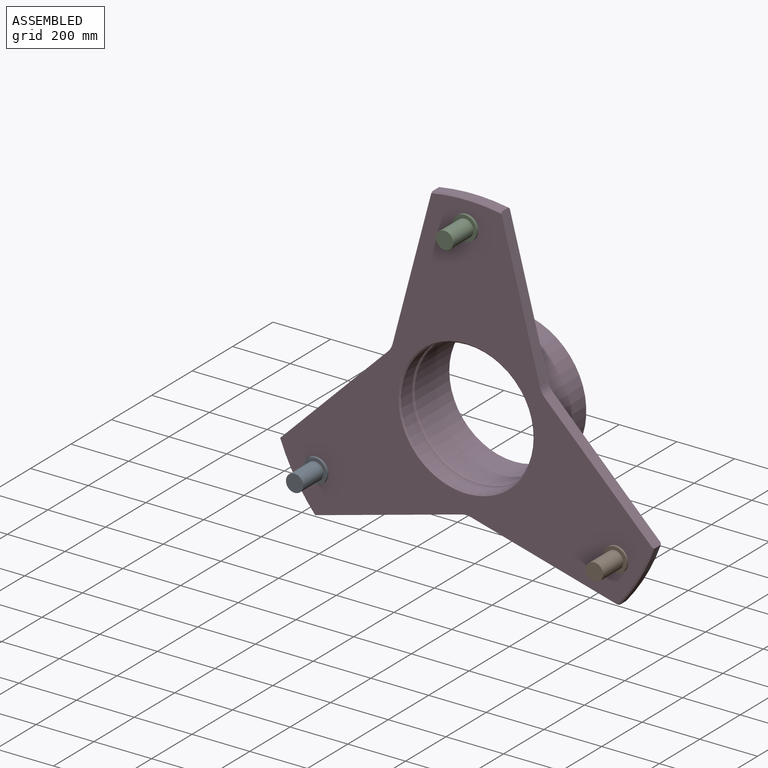
[diagram: assembled view]
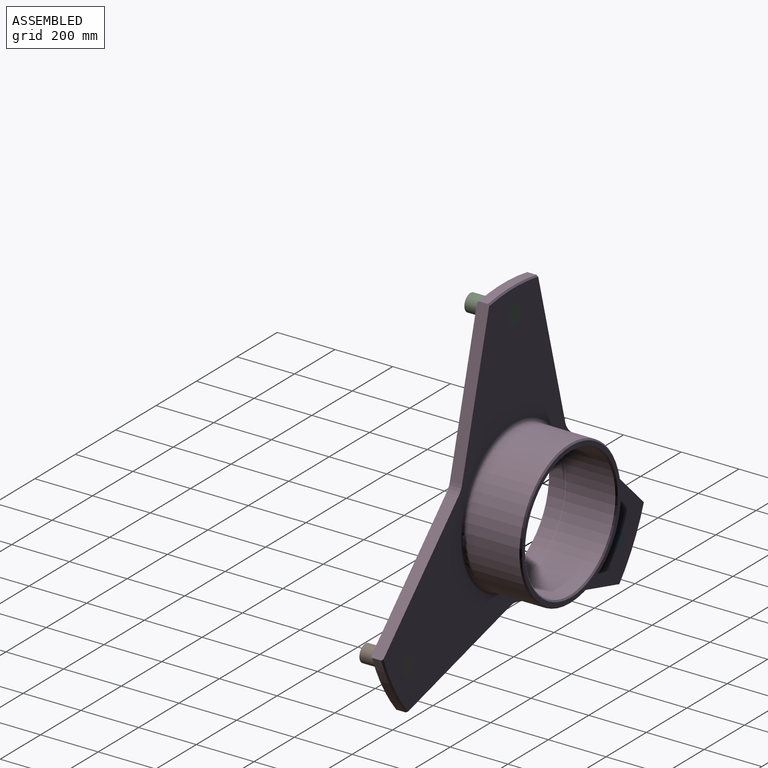
[diagram: assembled view, second angle]
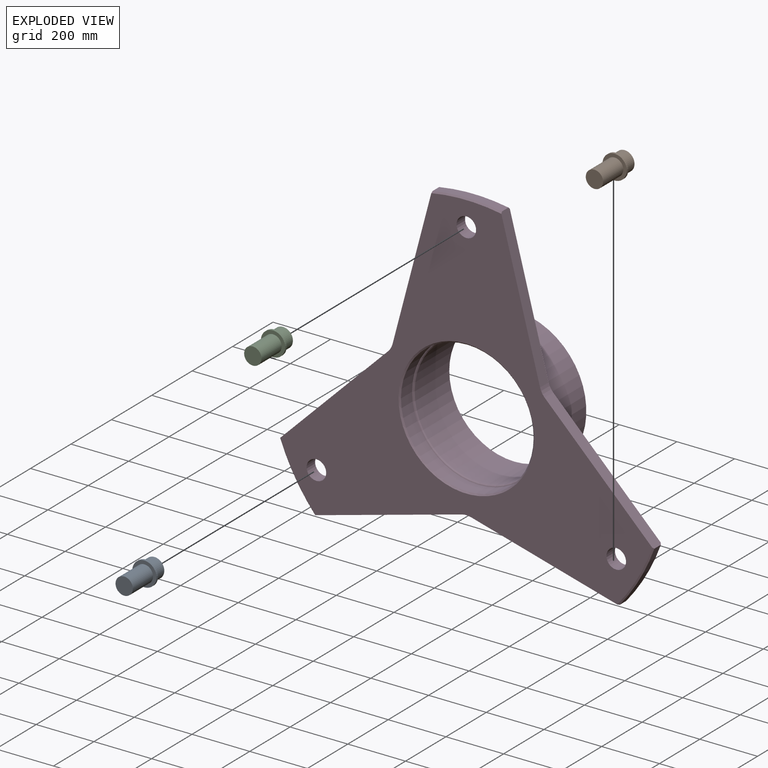
[diagram: exploded view]
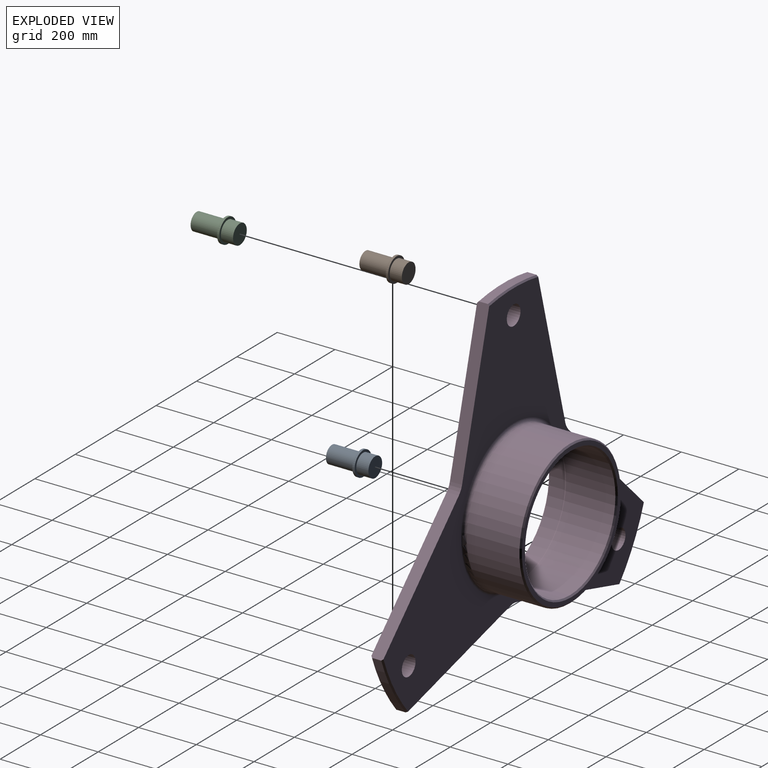
[diagram: exploded view, second angle]
ASSEMBLY  parts=4 mates=3
PART A: 7 faces, bbox 84x150x84 mm
  f0: cylinder r=30mm len=100mm, axis (0,-1,0), area 18849.6mm2, adj f1,f6
  f1: plane 60x60mm, normal (0,-1,0), area 2827.4mm2, adj f0
  f2: plane 68x68mm, normal (0,1,0), area 3631.7mm2, adj f3
  f3: cylinder r=34mm len=68mm, axis (0,-1,0), area 8972.4mm2, adj f2,f4
  f4: plane 84x84mm, normal (0,1,0), area 1910.1mm2, adj f3,f5
  f5: cylinder r=42mm len=84mm, axis (0,-1,0), area 2111.2mm2, adj f4,f6
  f6: plane 84x84mm, normal (0,-1,0), area 2714.3mm2, adj f0,f5
PART B: same geometry as A
PART C: same geometry as A
PART D: 33 faces, bbox 1298.5x242x1135.5 mm
  f0: cylinder r=690mm len=207.85mm, axis (0,-1,0), area 7719.3mm2, adj f5,f6,f25,f30
  f1: plane 1289.08x1127.22mm, normal (0,-1,0), area 537315.6mm2, adj f3,f6,f16,f17,f20,f21,f22,f23
  f2: cone r=690mm half-angle=45deg, axis (0,-1,0), area 1715.9mm2, adj f8,f9,f22,f29
  f3: cone r=685mm half-angle=45deg, axis (0,1,0), area 1715.9mm2, adj f1,f9,f22,f29
  f4: cylinder r=690mm len=207.85mm, axis (0,-1,0), area 7719.3mm2, adj f14,f17,f21,f26
  f5: cone r=690mm half-angle=45deg, axis (0,-1,0), area 1715.9mm2, adj f0,f8,f25,f30
  f6: cone r=685mm half-angle=45deg, axis (0,1,0), area 1715.9mm2, adj f0,f1,f25,f30
  f7: cylinder r=250mm len=500mm, axis (0,-1,0), area 287455.7mm2, adj f18,f32
  f8: plane 1289.08x1127.22mm, normal (0,1,0), area 495158.5mm2, adj f2,f5,f14,f20,f21,f22,f23,f24
  f9: cylinder r=690mm len=240mm, axis (0,-1,0), area 7719.3mm2, adj f2,f3,f22,f29
  f10: cylinder r=230mm len=460mm, axis (0,-1,0), area 79482.3mm2, adj f11,f16
  f11: cone r=230mm half-angle=60deg, axis (0,-1,0), area 4149.1mm2, adj f10,f15
  f12: cylinder r=225mm len=450mm, axis (0,-1,0), area 242065.8mm2, adj f15,f19
  f13: plane 490x490mm, normal (0,1,0), area 22383.8mm2, adj f18,f19
  f14: cone r=690mm half-angle=45deg, axis (0,-1,0), area 1715.9mm2, adj f4,f8,f21,f26
  f15: cone r=225mm half-angle=30deg, axis (0,-1,0), area 7107.9mm2, adj f11,f12
  f16: cone r=230mm half-angle=45deg, axis (0,-1,0), area 10329.7mm2, adj f1,f10
  f17: cone r=685mm half-angle=45deg, axis (0,1,0), area 1715.9mm2, adj f1,f4,f21,f26
  f18: cone r=250mm half-angle=45deg, axis (0,-1,0), area 10996.1mm2, adj f7,f13
  f19: cone r=230mm half-angle=45deg, axis (0,1,0), area 10107.6mm2, adj f12,f13
  f20: cylinder r=60mm len=42mm, axis (0,-1,0), area 1337.8mm2, adj f1,f8,f21,f22
  f21: plane 377.08x374.34mm, normal (0.7,0,0.71), area 22287.9mm2, adj f1,f4,f8,f14,f17,f20
  f22: plane 513.72x135.65mm, normal (0.97,0,0.26), area 22287.9mm2, adj f1,f2,f3,f8,f9,f20
  f23: cylinder r=34mm len=68mm, axis (0,-1,0), area 8972.4mm2, adj f1,f8
  f24: cylinder r=60mm len=42mm, axis (0,-1,0), area 1337.8mm2, adj f1,f8,f25,f26
  f25: plane 512.72x139.4mm, normal (0.26,0,-0.96), area 22287.9mm2, adj f0,f1,f5,f6,f8,f24
  f26: plane 512.72x139.4mm, normal (-0.26,0,-0.96), area 22287.9mm2, adj f1,f4,f8,f14,f17,f24
  f27: cylinder r=34mm len=68mm, axis (0,-1,0), area 8972.4mm2, adj f1,f8
  f28: cylinder r=60mm len=42mm, axis (0,-1,0), area 1337.8mm2, adj f1,f8,f29,f30
  f29: plane 513.72x135.65mm, normal (-0.97,0,0.26), area 22287.9mm2, adj f1,f2,f3,f8,f9,f28
  f30: plane 377.08x374.34mm, normal (-0.7,0,0.71), area 22287.9mm2, adj f0,f1,f5,f6,f8,f28
  f31: cylinder r=34mm len=68mm, axis (0,-1,0), area 8972.4mm2, adj f1,f8
  f32: torus R=262mm, axis (0,-1,0), area 30125.3mm2, adj f7,f8
PLACE A t=(-519.62,-550,-900)mm
PLACE B t=(519.62,-550,-900)mm
PLACE C t=(0,-550,0)mm
PLACE D t=(0,-792,0)mm fixed
MATE fastened B.f0 <-> D.f27  axis (0,1,0) through (519.62,-242,-300)mm
MATE fastened C.f0 <-> D.f23  axis (0,1,0) through (0,-242,600)mm
MATE fastened A.f0 <-> D.f31  axis (0,1,0) through (-519.62,-242,-300)mm
